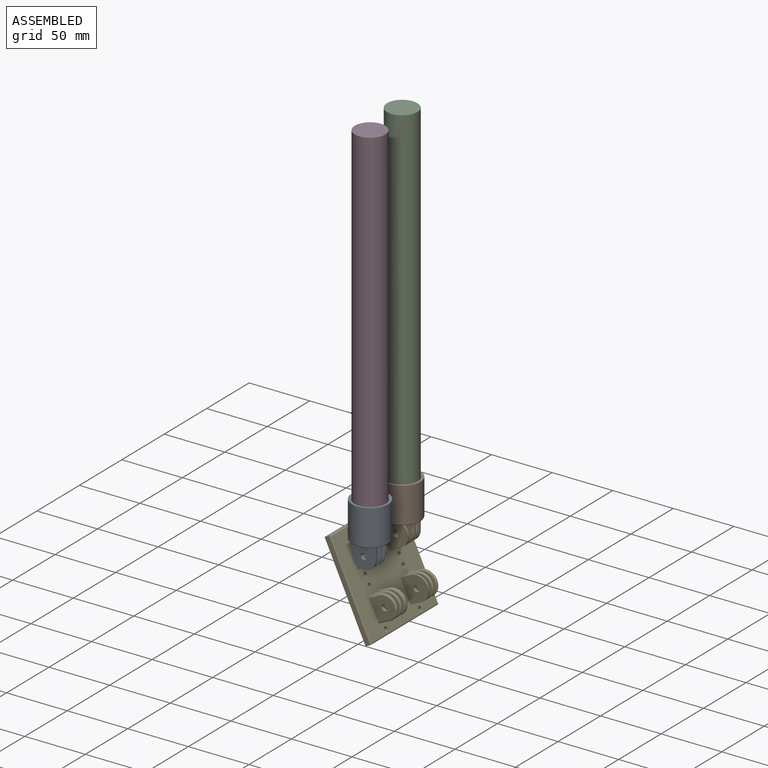
[diagram: assembled view]
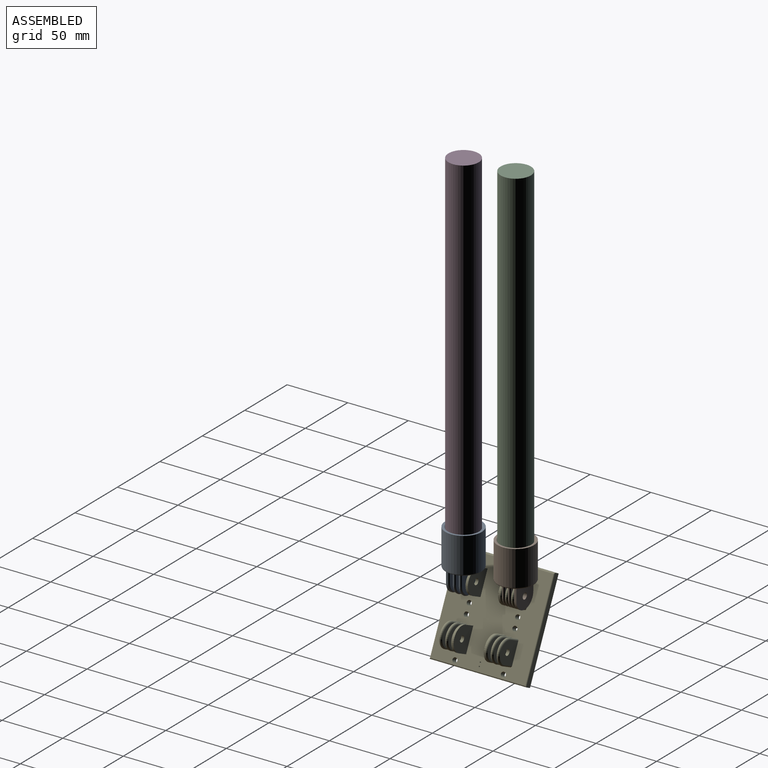
[diagram: assembled view, second angle]
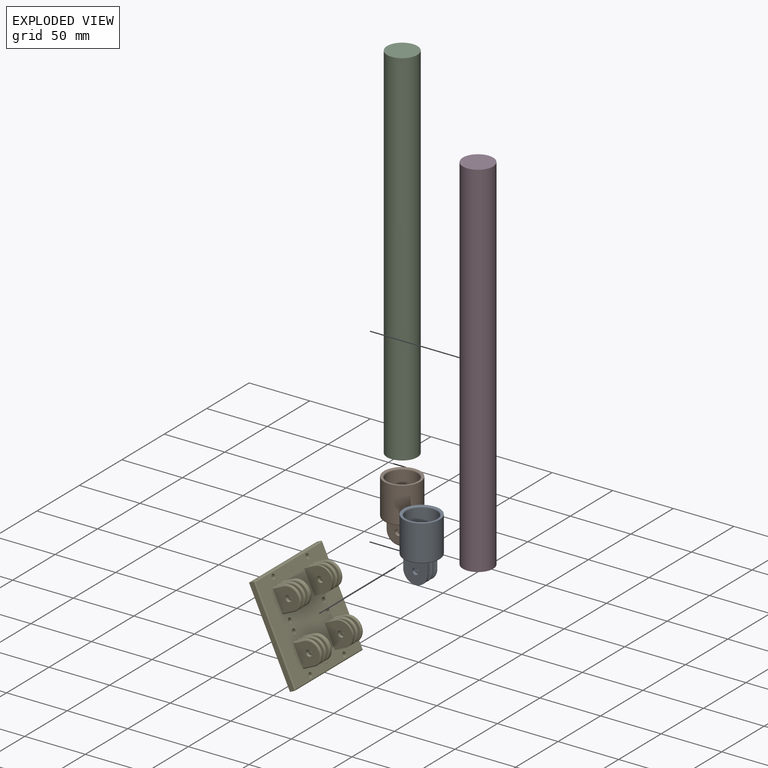
[diagram: exploded view]
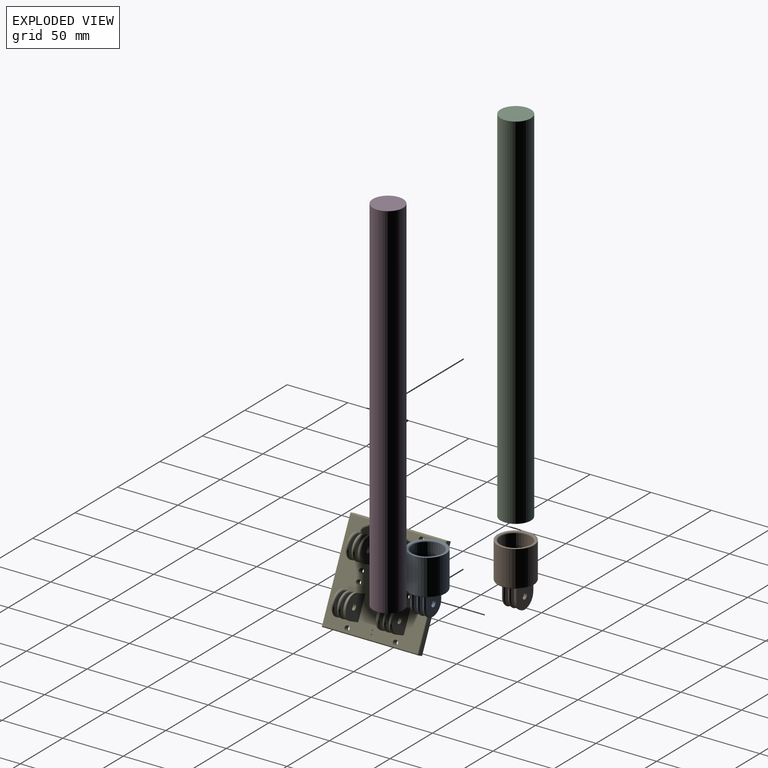
[diagram: exploded view, second angle]
ASSEMBLY  parts=5 mates=3
PART A: 34 faces, bbox 32.5x32.5x50.8 mm
  f0: cylinder r=12.5mm len=25mm, axis (0,0,-1), area 1885mm2, adj f4,f18
  f1: cylinder r=15mm len=30mm, axis (0,0,-1), area 2733.2mm2, adj f2,f17
  f2: plane 30x30mm, normal (0,0,1), area 134.3mm2, adj f1,f18
  f3: plane 28x28mm, normal (0,0,-1), area 469.4mm2, adj f5,f6,f7,f8,f9,f10,f11,f12
  f4: plane 25x25mm, normal (0,0,1), area 490.9mm2, adj f0
  f5: plane 20x20mm, normal (0,-1,0), area 337.4mm2, adj f3,f6,f8,f15,f16
  f6: plane 10x1.2mm, normal (-1,0,0), area 12mm2, adj f3,f5,f16,f19
  f7: plane 18.7x17.4mm, normal (0,1,0), area 273.3mm2, adj f3,f15,f19,f20,f21
  f8: plane 10x1.2mm, normal (1,0,0), area 12mm2, adj f3,f5,f16,f21
  f9: plane 18.7x17.4mm, normal (0,-1,0), area 273.3mm2, adj f3,f14,f23,f25,f27
  f10: plane 18.7x17.4mm, normal (0,1,0), area 273.3mm2, adj f3,f14,f22,f24,f26
  f11: plane 18.7x17.4mm, normal (0,-1,0), area 273.3mm2, adj f3,f13,f29,f31,f33
  f12: plane 18.7x17.4mm, normal (0,1,0), area 273.3mm2, adj f3,f13,f28,f30,f32
  f13: cylinder r=2.5mm len=5mm, axis (0,1,0), area 39.3mm2, adj f11,f12
  f14: cylinder r=2.5mm len=5mm, axis (0,1,0), area 39.3mm2, adj f9,f10
  f15: cylinder r=2.5mm len=5mm, axis (0,1,0), area 39.3mm2, adj f5,f7
  f16: cylinder r=10mm len=20mm, axis (0,1,0), area 37.7mm2, adj f5,f6,f8,f20
  f17: torus R=14mm, axis (0,0,1), area 144.5mm2, adj f1,f3
  f18: torus R=13.5mm, axis (0,0,1), area 127mm2, adj f0,f2
  f19: cylinder r=1.3mm len=10mm, axis (0,0,1), area 20.4mm2, adj f3,f6,f7,f20
  f20: torus R=8.7mm, axis (0,-1,0), area 61.1mm2, adj f7,f16,f19,f21
  f21: cylinder r=1.3mm len=10mm, axis (0,0,1), area 20.4mm2, adj f3,f7,f8,f20
  f22: cylinder r=1.3mm len=10mm, axis (0,0,1), area 19.9mm2, adj f3,f10,f23,f24
  f23: cylinder r=1.3mm len=10mm, axis (0,0,1), area 19.9mm2, adj f3,f9,f22,f25
  f24: torus R=8.7mm, axis (0,1,0), area 59.6mm2, adj f10,f22,f25,f26
  f25: torus R=8.7mm, axis (0,-1,0), area 59.6mm2, adj f9,f23,f24,f27
  f26: cylinder r=1.3mm len=10mm, axis (0,0,-1), area 19.9mm2, adj f3,f10,f24,f27
  f27: cylinder r=1.3mm len=10mm, axis (0,0,-1), area 19.9mm2, adj f3,f9,f25,f26
  f28: cylinder r=1.3mm len=10mm, axis (0,0,1), area 19.9mm2, adj f3,f12,f29,f30
  f29: cylinder r=1.3mm len=10mm, axis (0,0,1), area 19.9mm2, adj f3,f11,f28,f31
  f30: torus R=8.7mm, axis (0,1,0), area 59.6mm2, adj f12,f28,f31,f32
  f31: torus R=8.7mm, axis (0,-1,0), area 59.6mm2, adj f11,f29,f30,f33
  f32: cylinder r=1.3mm len=10mm, axis (0,0,-1), area 19.9mm2, adj f3,f12,f30,f33
  f33: cylinder r=1.3mm len=10mm, axis (0,0,-1), area 19.9mm2, adj f3,f11,f31,f32
PART B: same geometry as A
PART C: 3 faces, bbox 25x25x300 mm
  f0: cylinder r=12.5mm len=300mm, axis (0,0,-1), area 23561.9mm2, adj f1,f2
  f1: plane 25x25mm, normal (0,0,1), area 490.9mm2, adj f0
  f2: plane 25x25mm, normal (0,0,-1), area 490.9mm2, adj f0
PART D: same geometry as C
PART E: 130 faces, bbox 80x80x25.8 mm
  f0: plane 80x4mm, normal (0,1,0), area 320mm2, adj f1,f3,f19,f68
  f1: plane 80x4mm, normal (-1,0,0), area 320mm2, adj f0,f3,f18,f35
  f2: plane 78x78mm, normal (0,0,1), area 5394.8mm2, adj f4,f5,f6,f7,f8,f9,f10,f11
  f3: plane 80x80mm, normal (0,0,-1), area 6296.3mm2, adj f0,f1,f4,f5,f35,f36,f37,f66
  f4: cylinder r=2mm len=5mm, axis (0,0,1), area 62.8mm2, adj f2,f3
  f5: cylinder r=2mm len=5mm, axis (0,0,1), area 62.8mm2, adj f2,f3
  f6: plane 18.7x17.4mm, normal (0,1,0), area 273.3mm2, adj f2,f16,f20,f21,f22
  f7: plane 10x1.2mm, normal (-1,0,0), area 12mm2, adj f2,f8,f17,f22
  f8: plane 20x20mm, normal (0,-1,0), area 337.4mm2, adj f2,f7,f9,f16,f17
  f9: plane 10x1.2mm, normal (1,0,0), area 12mm2, adj f2,f8,f17,f20
  f10: plane 18.7x17.4mm, normal (0,-1,0), area 273.3mm2, adj f2,f15,f23,f25,f27
  f11: plane 18.7x17.4mm, normal (0,1,0), area 273.3mm2, adj f2,f15,f24,f26,f28
  f12: plane 18.7x17.4mm, normal (0,-1,0), area 273.3mm2, adj f2,f14,f29,f31,f33
  f13: plane 18.7x17.4mm, normal (0,1,0), area 273.3mm2, adj f2,f14,f30,f32,f34
  f14: cylinder r=2.5mm len=5mm, axis (0,-1,0), area 39.3mm2, adj f12,f13
  f15: cylinder r=2.5mm len=5mm, axis (0,-1,0), area 39.3mm2, adj f10,f11
  f16: cylinder r=2.5mm len=5mm, axis (0,-1,0), area 39.3mm2, adj f6,f8
  f17: cylinder r=10mm len=20mm, axis (0,-1,0), area 37.7mm2, adj f7,f8,f9,f21
  f18: cylinder r=1mm len=80mm, axis (0,1,0), area 124.5mm2, adj f1,f2,f19,f50
  f19: cylinder r=1mm len=80mm, axis (1,0,0), area 124.5mm2, adj f0,f2,f18,f83
  f20: cylinder r=1.3mm len=10mm, axis (0,0,-1), area 20.4mm2, adj f2,f6,f9,f21
  f21: torus R=8.7mm, axis (0,-1,0), area 61.1mm2, adj f6,f17,f20,f22
  f22: cylinder r=1.3mm len=10mm, axis (0,0,-1), area 20.4mm2, adj f2,f6,f7,f21
  f23: cylinder r=1.3mm len=10mm, axis (0,0,1), area 19.9mm2, adj f2,f10,f24,f25
  f24: cylinder r=1.3mm len=10mm, axis (0,0,-1), area 19.9mm2, adj f2,f11,f23,f26
  f25: torus R=8.7mm, axis (0,1,0), area 59.6mm2, adj f10,f23,f26,f27
  f26: torus R=8.7mm, axis (0,1,0), area 59.6mm2, adj f11,f24,f25,f28
  f27: cylinder r=1.3mm len=10mm, axis (0,0,1), area 19.9mm2, adj f2,f10,f25,f28
  f28: cylinder r=1.3mm len=10mm, axis (0,0,-1), area 19.9mm2, adj f2,f11,f26,f27
  f29: cylinder r=1.3mm len=10mm, axis (0,0,1), area 19.9mm2, adj f2,f12,f30,f31
  f30: cylinder r=1.3mm len=10mm, axis (0,0,-1), area 19.9mm2, adj f2,f13,f29,f32
  f31: torus R=8.7mm, axis (0,1,0), area 59.6mm2, adj f12,f29,f32,f33
  f32: torus R=8.7mm, axis (0,1,0), area 59.6mm2, adj f13,f30,f31,f34
  f33: cylinder r=1.3mm len=10mm, axis (0,0,1), area 19.9mm2, adj f2,f12,f31,f34
  f34: cylinder r=1.3mm len=10mm, axis (0,0,-1), area 19.9mm2, adj f2,f13,f32,f33
  f35: plane 80x4mm, normal (0,-1,0), area 320mm2, adj f1,f3,f50,f68
  f36: cylinder r=2mm len=5mm, axis (0,0,1), area 62.8mm2, adj f2,f3
  f37: cylinder r=2mm len=5mm, axis (0,0,1), area 62.8mm2, adj f2,f3
  f38: plane 18.7x17.4mm, normal (0,-1,0), area 273.3mm2, adj f2,f48,f51,f52,f53
  f39: plane 10x1.2mm, normal (-1,0,0), area 12mm2, adj f2,f40,f49,f53
  f40: plane 20x20mm, normal (0,1,0), area 337.4mm2, adj f2,f39,f41,f48,f49
  f41: plane 10x1.2mm, normal (1,0,0), area 12mm2, adj f2,f40,f49,f51
  f42: plane 18.7x17.4mm, normal (0,1,0), area 273.3mm2, adj f2,f47,f54,f56,f58
  f43: plane 18.7x17.4mm, normal (0,-1,0), area 273.3mm2, adj f2,f47,f55,f57,f59
  f44: plane 18.7x17.4mm, normal (0,1,0), area 273.3mm2, adj f2,f46,f60,f62,f64
  f45: plane 18.7x17.4mm, normal (0,-1,0), area 273.3mm2, adj f2,f46,f61,f63,f65
  f46: cylinder r=2.5mm len=5mm, axis (0,1,0), area 39.3mm2, adj f44,f45
  f47: cylinder r=2.5mm len=5mm, axis (0,1,0), area 39.3mm2, adj f42,f43
  f48: cylinder r=2.5mm len=5mm, axis (0,1,0), area 39.3mm2, adj f38,f40
  f49: cylinder r=10mm len=20mm, axis (0,1,0), area 37.7mm2, adj f39,f40,f41,f52
  f50: cylinder r=1mm len=80mm, axis (1,0,0), area 124.5mm2, adj f2,f18,f35,f83
  f51: cylinder r=1.3mm len=10mm, axis (0,0,-1), area 20.4mm2, adj f2,f38,f41,f52
  f52: torus R=8.7mm, axis (0,1,0), area 61.1mm2, adj f38,f49,f51,f53
  f53: cylinder r=1.3mm len=10mm, axis (0,0,-1), area 20.4mm2, adj f2,f38,f39,f52
  f54: cylinder r=1.3mm len=10mm, axis (0,0,1), area 19.9mm2, adj f2,f42,f55,f56
  f55: cylinder r=1.3mm len=10mm, axis (0,0,-1), area 19.9mm2, adj f2,f43,f54,f57
  f56: torus R=8.7mm, axis (0,-1,0), area 59.6mm2, adj f42,f54,f57,f58
  f57: torus R=8.7mm, axis (0,-1,0), area 59.6mm2, adj f43,f55,f56,f59
  f58: cylinder r=1.3mm len=10mm, axis (0,0,1), area 19.9mm2, adj f2,f42,f56,f59
  f59: cylinder r=1.3mm len=10mm, axis (0,0,-1), area 19.9mm2, adj f2,f43,f57,f58
  f60: cylinder r=1.3mm len=10mm, axis (0,0,1), area 19.9mm2, adj f2,f44,f61,f62
  f61: cylinder r=1.3mm len=10mm, axis (0,0,-1), area 19.9mm2, adj f2,f45,f60,f63
  f62: torus R=8.7mm, axis (0,-1,0), area 59.6mm2, adj f44,f60,f63,f64
  f63: torus R=8.7mm, axis (0,-1,0), area 59.6mm2, adj f45,f61,f62,f65
  f64: cylinder r=1.3mm len=10mm, axis (0,0,1), area 19.9mm2, adj f2,f44,f62,f65
  f65: cylinder r=1.3mm len=10mm, axis (0,0,-1), area 19.9mm2, adj f2,f45,f63,f64
  f66: cylinder r=0.5mm len=5mm, axis (0,0,1), area 15.7mm2, adj f2,f3
  f67: cylinder r=0.5mm len=5mm, axis (0,0,1), area 15.7mm2, adj f2,f3
  f68: plane 80x4mm, normal (1,0,0), area 320mm2, adj f0,f3,f35,f83
  f69: cylinder r=2mm len=5mm, axis (0,0,1), area 62.8mm2, adj f2,f3
  f70: cylinder r=2mm len=5mm, axis (0,0,1), area 62.8mm2, adj f2,f3
  f71: plane 18.7x17.4mm, normal (0,1,0), area 273.3mm2, adj f2,f81,f84,f85,f86
  f72: plane 10x1.2mm, normal (1,0,0), area 12mm2, adj f2,f73,f82,f86
  f73: plane 20x20mm, normal (0,-1,0), area 337.4mm2, adj f2,f72,f74,f81,f82
  f74: plane 10x1.2mm, normal (-1,0,0), area 12mm2, adj f2,f73,f82,f84
  f75: plane 18.7x17.4mm, normal (0,-1,0), area 273.3mm2, adj f2,f80,f87,f89,f91
  f76: plane 18.7x17.4mm, normal (0,1,0), area 273.3mm2, adj f2,f80,f88,f90,f92
  f77: plane 18.7x17.4mm, normal (0,-1,0), area 273.3mm2, adj f2,f79,f93,f95,f97
  f78: plane 18.7x17.4mm, normal (0,1,0), area 273.3mm2, adj f2,f79,f94,f96,f98
  f79: cylinder r=2.5mm len=5mm, axis (0,-1,0), area 39.3mm2, adj f77,f78
  f80: cylinder r=2.5mm len=5mm, axis (0,-1,0), area 39.3mm2, adj f75,f76
  f81: cylinder r=2.5mm len=5mm, axis (0,-1,0), area 39.3mm2, adj f71,f73
  f82: cylinder r=10mm len=20mm, axis (0,-1,0), area 37.7mm2, adj f72,f73,f74,f85
  f83: cylinder r=1mm len=80mm, axis (0,1,0), area 124.5mm2, adj f2,f19,f50,f68
  f84: cylinder r=1.3mm len=10mm, axis (0,0,-1), area 20.4mm2, adj f2,f71,f74,f85
  f85: torus R=8.7mm, axis (0,-1,0), area 61.1mm2, adj f71,f82,f84,f86
  f86: cylinder r=1.3mm len=10mm, axis (0,0,-1), area 20.4mm2, adj f2,f71,f72,f85
  f87: cylinder r=1.3mm len=10mm, axis (0,0,1), area 19.9mm2, adj f2,f75,f88,f89
  f88: cylinder r=1.3mm len=10mm, axis (0,0,-1), area 19.9mm2, adj f2,f76,f87,f90
  f89: torus R=8.7mm, axis (0,1,0), area 59.6mm2, adj f75,f87,f90,f91
  f90: torus R=8.7mm, axis (0,1,0), area 59.6mm2, adj f76,f88,f89,f92
  f91: cylinder r=1.3mm len=10mm, axis (0,0,1), area 19.9mm2, adj f2,f75,f89,f92
  f92: cylinder r=1.3mm len=10mm, axis (0,0,-1), area 19.9mm2, adj f2,f76,f90,f91
  f93: cylinder r=1.3mm len=10mm, axis (0,0,1), area 19.9mm2, adj f2,f77,f94,f95
  f94: cylinder r=1.3mm len=10mm, axis (0,0,-1), area 19.9mm2, adj f2,f78,f93,f96
  f95: torus R=8.7mm, axis (0,1,0), area 59.6mm2, adj f77,f93,f96,f97
  f96: torus R=8.7mm, axis (0,1,0), area 59.6mm2, adj f78,f94,f95,f98
  f97: cylinder r=1.3mm len=10mm, axis (0,0,1), area 19.9mm2, adj f2,f77,f95,f98
  f98: cylinder r=1.3mm len=10mm, axis (0,0,-1), area 19.9mm2, adj f2,f78,f96,f97
  f99: cylinder r=2mm len=5mm, axis (0,0,1), area 62.8mm2, adj f2,f3
  f100: cylinder r=2mm len=5mm, axis (0,0,1), area 62.8mm2, adj f2,f3
  f101: plane 18.7x17.4mm, normal (0,-1,0), area 273.3mm2, adj f2,f111,f113,f114,f115
  f102: plane 10x1.2mm, normal (1,0,0), area 12mm2, adj f2,f103,f112,f115
  f103: plane 20x20mm, normal (0,1,0), area 337.4mm2, adj f2,f102,f104,f111,f112
  f104: plane 10x1.2mm, normal (-1,0,0), area 12mm2, adj f2,f103,f112,f113
  f105: plane 18.7x17.4mm, normal (0,1,0), area 273.3mm2, adj f2,f110,f116,f118,f120
  f106: plane 18.7x17.4mm, normal (0,-1,0), area 273.3mm2, adj f2,f110,f117,f119,f121
  f107: plane 18.7x17.4mm, normal (0,1,0), area 273.3mm2, adj f2,f109,f122,f124,f126
  f108: plane 18.7x17.4mm, normal (0,-1,0), area 273.3mm2, adj f2,f109,f123,f125,f127
  f109: cylinder r=2.5mm len=5mm, axis (0,1,0), area 39.3mm2, adj f107,f108
  f110: cylinder r=2.5mm len=5mm, axis (0,1,0), area 39.3mm2, adj f105,f106
  f111: cylinder r=2.5mm len=5mm, axis (0,1,0), area 39.3mm2, adj f101,f103
  f112: cylinder r=10mm len=20mm, axis (0,1,0), area 37.7mm2, adj f102,f103,f104,f114
  f113: cylinder r=1.3mm len=10mm, axis (0,0,-1), area 20.4mm2, adj f2,f101,f104,f114
  f114: torus R=8.7mm, axis (0,1,0), area 61.1mm2, adj f101,f112,f113,f115
  f115: cylinder r=1.3mm len=10mm, axis (0,0,-1), area 20.4mm2, adj f2,f101,f102,f114
  f116: cylinder r=1.3mm len=10mm, axis (0,0,1), area 19.9mm2, adj f2,f105,f117,f118
  f117: cylinder r=1.3mm len=10mm, axis (0,0,-1), area 19.9mm2, adj f2,f106,f116,f119
  f118: torus R=8.7mm, axis (0,-1,0), area 59.6mm2, adj f105,f116,f119,f120
  f119: torus R=8.7mm, axis (0,-1,0), area 59.6mm2, adj f106,f117,f118,f121
  f120: cylinder r=1.3mm len=10mm, axis (0,0,1), area 19.9mm2, adj f2,f105,f118,f121
  f121: cylinder r=1.3mm len=10mm, axis (0,0,-1), area 19.9mm2, adj f2,f106,f119,f120
  f122: cylinder r=1.3mm len=10mm, axis (0,0,1), area 19.9mm2, adj f2,f107,f123,f124
  f123: cylinder r=1.3mm len=10mm, axis (0,0,-1), area 19.9mm2, adj f2,f108,f122,f125
  f124: torus R=8.7mm, axis (0,-1,0), area 59.6mm2, adj f107,f122,f125,f126
  f125: torus R=8.7mm, axis (0,-1,0), area 59.6mm2, adj f108,f123,f124,f127
  f126: cylinder r=1.3mm len=10mm, axis (0,0,1), area 19.9mm2, adj f2,f107,f124,f127
  f127: cylinder r=1.3mm len=10mm, axis (0,0,-1), area 19.9mm2, adj f2,f108,f125,f126
  f128: cylinder r=0.5mm len=5mm, axis (0,0,1), area 15.7mm2, adj f2,f3
  f129: cylinder r=0.5mm len=5mm, axis (0,0,1), area 15.7mm2, adj f2,f3
PLACE A t=(3.95,-41.53,10.55)mm
PLACE B rot(axis=(0,0,1),180deg) t=(1.55,-0.18,10.89)mm
PLACE C t=(1.55,-0.18,15.89)mm
PLACE D t=(3.95,-41.53,15.55)mm
PLACE E rot(axis=(0,1,0),65deg) t=(-12.05,-0.18,-5.45)mm
MATE fastened D.f0 <-> A.f0  axis (0,0,-1) through (3.95,-41.53,15.55)mm
MATE revolute E.f14 <-> B.f13  axis (0,1,0) through (1.55,4.82,0.89)mm
MATE fastened C.f0 <-> B.f0  axis (0,0,-1) through (1.55,-0.18,15.89)mm
